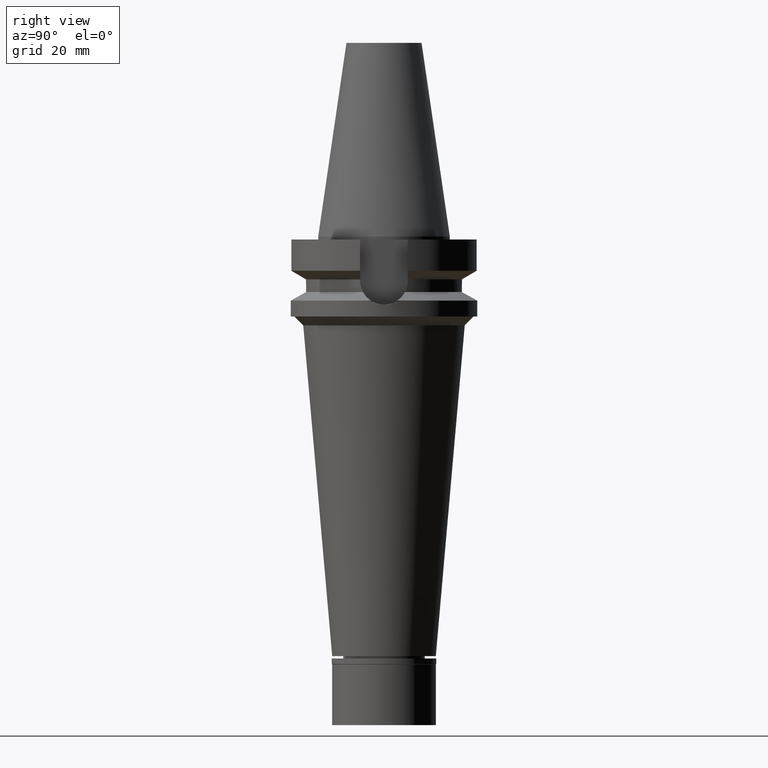
[diagram: clean part render]
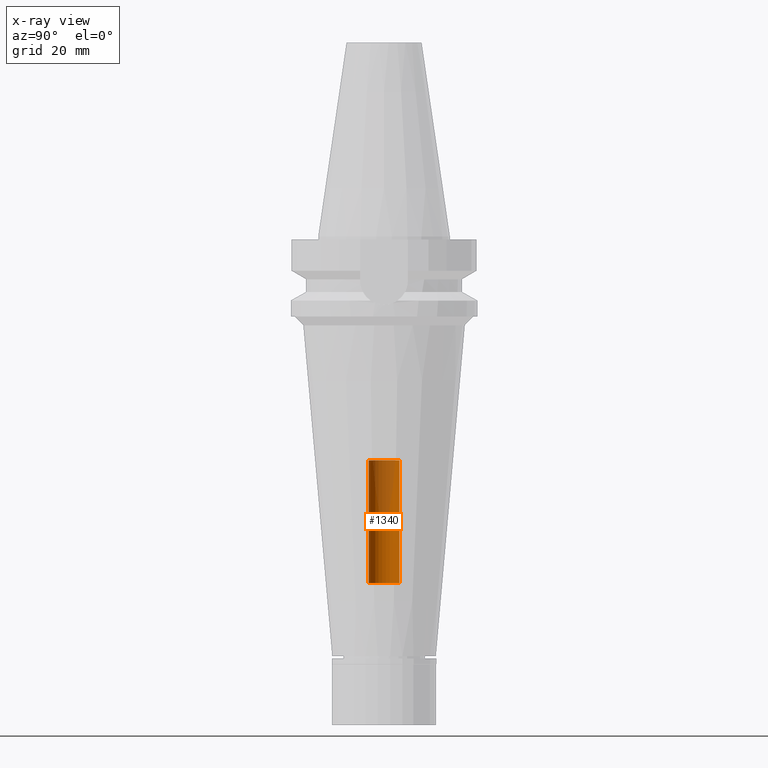
[diagram: x-ray — body ghosted, one internal face saturated and labeled with its STEP entity id]
A machine part, right view, then the same camera in x-ray: the body is ghosted and one INTERNAL B-rep face — a face not visible from any outside direction — is saturated and labeled: STEP entity #1340.
In plain terms, the highlighted cylindrical surface (edge-blend (fillet) strip) has radius 5.2 mm, axis along (0, 0, -1).
Its self-contained STEP definition (entity closure, byte-faithful):
#54 = CARTESIAN_POINT ( 'NONE',  ( 0.0000000000000000000, -5.200000000000000178, -117.0000000000000000 ) ) ;
#128 = CARTESIAN_POINT ( 'NONE',  ( 0.0000000000000000000, -5.200000000000000178, -117.0000000000000000 ) ) ;
#136 = CARTESIAN_POINT ( 'NONE',  ( 0.0000000000000000000, 2.162542550273999956E-14, -75.59999999999999432 ) ) ;
#147 = CYLINDRICAL_SURFACE ( 'NONE', #1454, 5.200000000000000178 ) ;
#312 = DIRECTION ( 'NONE',  ( 0.0000000000000000000, -1.000000000000000000, 0.0000000000000000000 ) ) ;
#384 = CARTESIAN_POINT ( 'NONE',  ( 0.0000000000000000000, 2.162542550273999956E-14, 76.58499999999999375 ) ) ;
#443 = AXIS2_PLACEMENT_3D ( 'NONE', #1539, #2490, #312 ) ;
#576 = DIRECTION ( 'NONE',  ( 0.0000000000000000000, 0.0000000000000000000, -1.000000000000000000 ) ) ;
#782 = CIRCLE ( 'NONE', #2562, 5.200000000000000178 ) ;
#919 = VERTEX_POINT ( 'NONE', #54 ) ;
#933 = VERTEX_POINT ( 'NONE', #2508 ) ;
#1104 = EDGE_CURVE ( 'NONE', #919, #2481, #3044, .T. ) ;
#1151 = CIRCLE ( 'NONE', #443, 5.200000000000000178 ) ;
#1246 = EDGE_LOOP ( 'NONE', ( #2341, #2910, #1994, #2039 ) ) ;
#1340 = ADVANCED_FACE ( 'NONE', ( #2333 ), #147, .F. ) ;
#1365 = CARTESIAN_POINT ( 'NONE',  ( 0.0000000000000000000, 5.200000000000000178, -117.0000000000000000 ) ) ;
#1454 = AXIS2_PLACEMENT_3D ( 'NONE', #384, #576, #1849 ) ;
#1539 = CARTESIAN_POINT ( 'NONE',  ( 0.0000000000000000000, 2.162542550273999956E-14, -117.0000000000000000 ) ) ;
#1768 = CARTESIAN_POINT ( 'NONE',  ( 0.0000000000000000000, 5.200000000000000178, -117.0000000000000000 ) ) ;
#1849 = DIRECTION ( 'NONE',  ( 0.0000000000000000000, -1.000000000000000000, 0.0000000000000000000 ) ) ;
#1923 = EDGE_CURVE ( 'NONE', #2742, #933, #2574, .T. ) ;
#1994 = ORIENTED_EDGE ( 'NONE', *, *, #2745, .T. ) ;
#2039 = ORIENTED_EDGE ( 'NONE', *, *, #1923, .T. ) ;
#2081 = DIRECTION ( 'NONE',  ( 0.0000000000000000000, 0.0000000000000000000, 1.000000000000000000 ) ) ;
#2215 = CARTESIAN_POINT ( 'NONE',  ( 0.0000000000000000000, -5.200000000000000178, -75.59999999999999432 ) ) ;
#2317 = DIRECTION ( 'NONE',  ( 0.0000000000000000000, 0.0000000000000000000, 1.000000000000000000 ) ) ;
#2329 = DIRECTION ( 'NONE',  ( 0.0000000000000000000, 0.0000000000000000000, 1.000000000000000000 ) ) ;
#2333 = FACE_OUTER_BOUND ( 'NONE', #1246, .T. ) ;
#2341 = ORIENTED_EDGE ( 'NONE', *, *, #2389, .T. ) ;
#2389 = EDGE_CURVE ( 'NONE', #933, #2481, #782, .T. ) ;
#2481 = VERTEX_POINT ( 'NONE', #2215 ) ;
#2490 = DIRECTION ( 'NONE',  ( 0.0000000000000000000, 0.0000000000000000000, -1.000000000000000000 ) ) ;
#2508 = CARTESIAN_POINT ( 'NONE',  ( 0.0000000000000000000, 5.200000000000000178, -75.59999999999999432 ) ) ;
#2562 = AXIS2_PLACEMENT_3D ( 'NONE', #136, #2081, #3051 ) ;
#2574 = LINE ( 'NONE', #1365, #2971 ) ;
#2664 = VECTOR ( 'NONE', #2317, 1000.000000000000000 ) ;
#2742 = VERTEX_POINT ( 'NONE', #1768 ) ;
#2745 = EDGE_CURVE ( 'NONE', #919, #2742, #1151, .T. ) ;
#2910 = ORIENTED_EDGE ( 'NONE', *, *, #1104, .F. ) ;
#2971 = VECTOR ( 'NONE', #2329, 1000.000000000000000 ) ;
#3044 = LINE ( 'NONE', #128, #2664 ) ;
#3051 = DIRECTION ( 'NONE',  ( 0.0000000000000000000, 1.000000000000000000, 0.0000000000000000000 ) ) ;